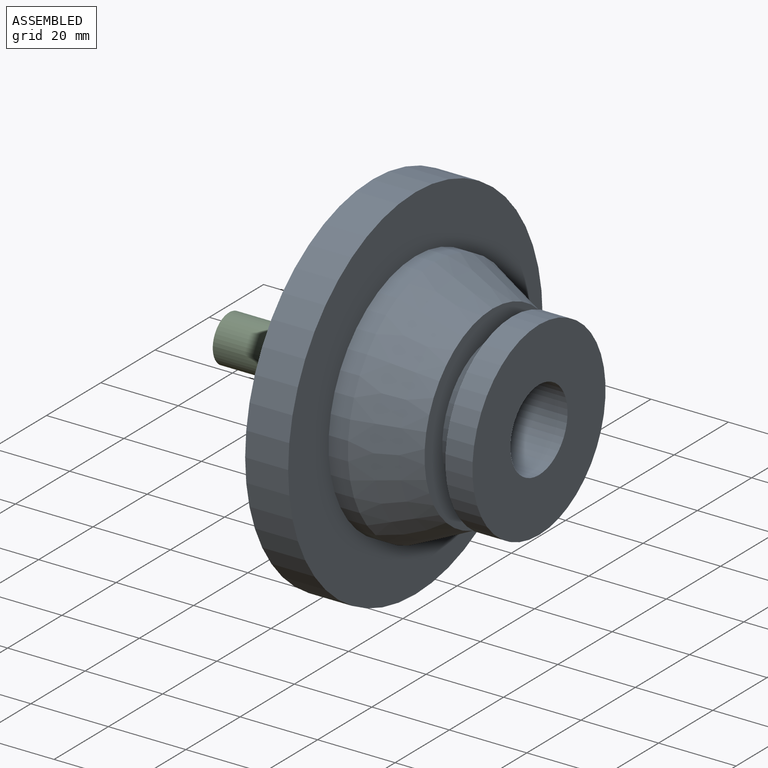
[diagram: assembled view]
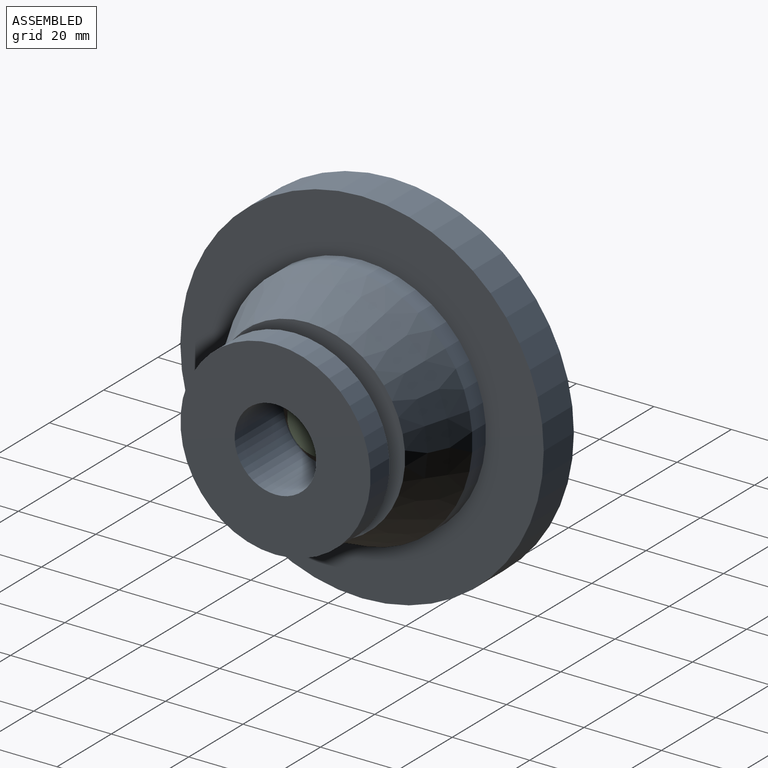
[diagram: assembled view, second angle]
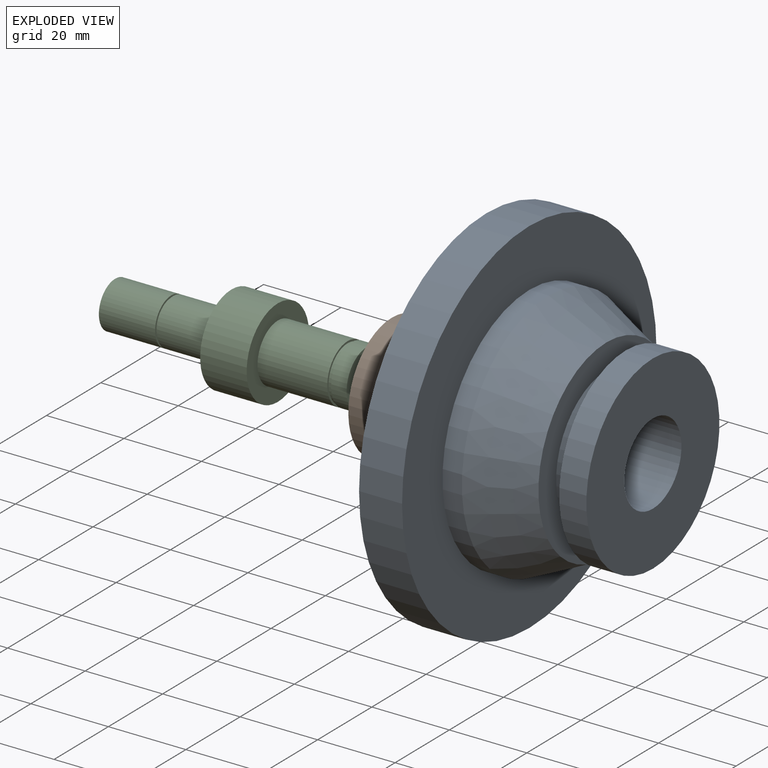
[diagram: exploded view]
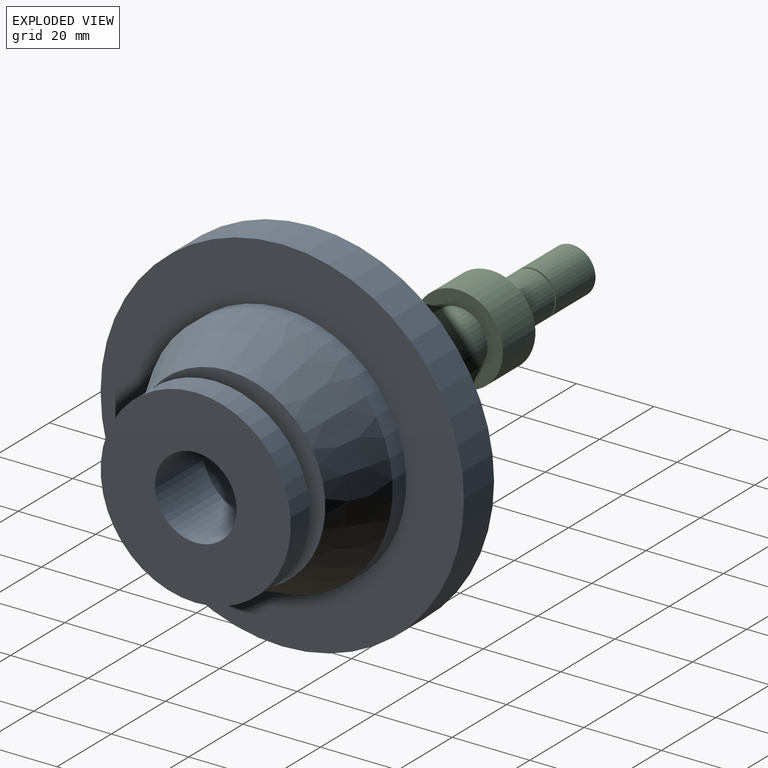
[diagram: exploded view, second angle]
ASSEMBLY  parts=3 mates=4
PART A: 19 faces, bbox 43x93.8x93.8 mm
  f0: plane 33.7x33.7mm, normal (-1,0,0), area 87.7mm2, adj f1,f18
  f1: cylinder r=16mm len=32mm, axis (-1,0,0), area 1809.6mm2, adj f0,f2
  f2: plane 32x32mm, normal (-1,0,0), area 351.9mm2, adj f1,f3
  f3: cylinder r=12mm len=24mm, axis (-1,0,0), area 150.8mm2, adj f2,f4
  f4: plane 24x24mm, normal (-1,0,0), area 103.7mm2, adj f3,f5
  f5: cylinder r=10.53mm len=21.07mm, axis (-1,0,0), area 1191.5mm2, adj f4,f6
  f6: plane 49.07x49.07mm, normal (1,0,0), area 1542.5mm2, adj f5,f7
  f7: cylinder r=24.54mm len=49.07mm, axis (-1,0,0), area 1079.1mm2, adj f6,f8
  f8: plane 49.07x49.07mm, normal (-1,0,0), area 811.9mm2, adj f7,f9
  f9: cylinder r=18.54mm len=37.07mm, axis (-1,0,0), area 582.3mm2, adj f8,f10
  f10: plane 50.1x50.1mm, normal (1,0,0), area 892.4mm2, adj f9,f11
  f11: cone r=32mm half-angle=25deg, axis (-1,0,0), area 2946.7mm2, adj f10,f12
  f12: cylinder r=32mm len=64mm, axis (-1,0,0), area 1005.3mm2, adj f11,f13
  f13: plane 93.8x93.8mm, normal (1,0,0), area 3693.3mm2, adj f12,f14
  f14: cylinder r=46.9mm len=93.8mm, axis (-1,0,0), area 3271mm2, adj f13,f15
  f15: plane 93.8x93.8mm, normal (-1,0,0), area 6106mm2, adj f14,f16
  f16: cylinder r=16mm len=32mm, axis (-1,0,0), area 382mm2, adj f15,f17
  f17: plane 33.7x33.7mm, normal (1,0,0), area 87.7mm2, adj f16,f18
  f18: cylinder r=16.85mm len=33.7mm, axis (-1,0,0), area 127mm2, adj f0,f17
PART B: 4 faces, bbox 18x32x32 mm
  f0: plane 32x32mm, normal (-1,0,0), area 627.5mm2, adj f1,f3
  f1: cylinder r=7.5mm len=18mm, axis (-1,0,0), area 848.2mm2, adj f0,f2
  f2: plane 32x32mm, normal (1,0,0), area 627.5mm2, adj f1,f3
  f3: cylinder r=16mm len=32mm, axis (-1,0,0), area 1809.6mm2, adj f0,f2
PART C: 15 faces, bbox 65x23x23 mm
  f0: plane 23x23mm, normal (1,0,0), area 238.8mm2, adj f1,f14
  f1: cylinder r=11.5mm len=23mm, axis (1,0,0), area 867.1mm2, adj f0,f2
  f2: plane 23x23mm, normal (-1,0,0), area 302.4mm2, adj f1,f3
  f3: cylinder r=6mm len=15mm, axis (1,0,0), area 565.5mm2, adj f2,f4
  f4: plane 12x12mm, normal (-1,0,0), area 18.1mm2, adj f3,f5
  f5: cylinder r=5.5mm len=11mm, axis (1,0,0), area 17.3mm2, adj f4,f6
  f6: plane 12x12mm, normal (1,0,0), area 18.1mm2, adj f5,f7
  f7: cylinder r=6mm len=14.5mm, axis (1,0,0), area 546.6mm2, adj f6,f8
  f8: plane 12x12mm, normal (-1,0,0), area 113.1mm2, adj f7
  f9: plane 15x15mm, normal (1,0,0), area 176.7mm2, adj f10
  f10: cylinder r=7.5mm len=15mm, axis (1,0,0), area 188.5mm2, adj f9,f11
  f11: plane 15x15mm, normal (-1,0,0), area 22.8mm2, adj f10,f12
  f12: cylinder r=7mm len=14mm, axis (1,0,0), area 44mm2, adj f11,f13
  f13: plane 15x15mm, normal (1,0,0), area 22.8mm2, adj f12,f14
  f14: cylinder r=7.5mm len=18mm, axis (1,0,0), area 848.2mm2, adj f0,f13
PLACE A t=(46.97,47.37,-31.21)mm
PLACE B t=(46.97,47.37,-31.21)mm
PLACE C t=(46.97,47.37,-31.21)mm
MATE slider B.f1 <-> C.f1  axis (-1,0,0) through (60.97,47.37,-31.21)mm
MATE planar B.f1 <-> A.f1  axis (1,0,0) through (69.97,47.37,-31.21)mm
MATE planar C.f1 <-> B.f1  axis (1,0,0) through (51.97,47.37,-31.21)mm
MATE slider A.f1 <-> B.f1  axis (-1,0,0) through (60.97,47.37,-31.21)mm
